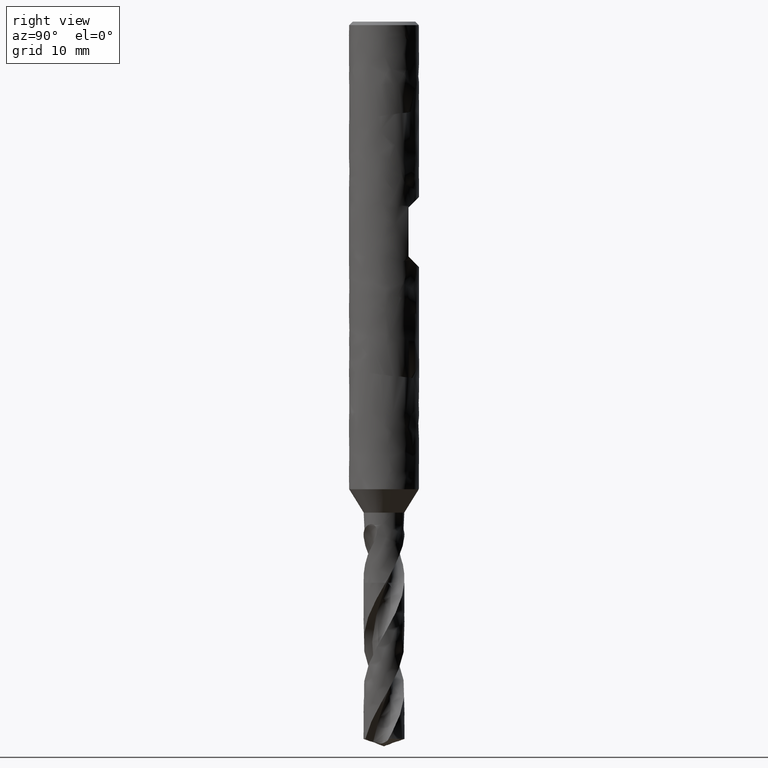
[diagram: clean part render]
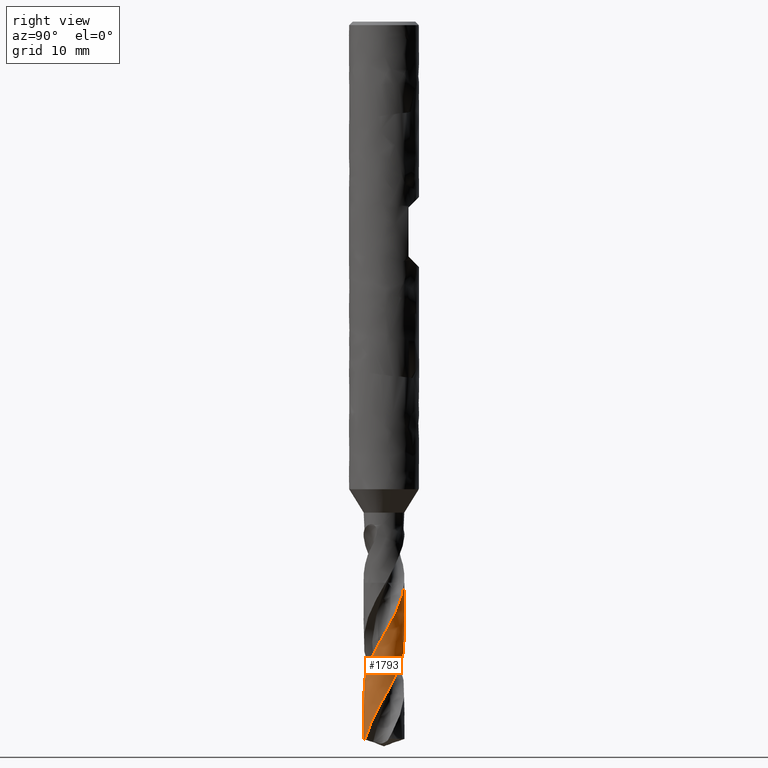
[diagram: same view with one face highlighted and labeled with its STEP entity id]
A machine part, right view. The second image highlights one B-rep face of the part: STEP entity #1793.
In plain terms, the highlighted face is a freeform B-spline surface patch.
Its self-contained STEP definition (entity closure, byte-faithful):
#1635 = VERTEX_POINT('', #1636);
#1636 = CARTESIAN_POINT('', (0.209315928972215, 1.73743685676138, -48.));
#1691 = EDGE_CURVE('', #1692, #1635, #1694, .T.);
#1692 = VERTEX_POINT('', #1693);
#1693 = CARTESIAN_POINT('', (-1.75, 3.04630891287904E-15, -48.));
#1694 = CIRCLE('', #1695, 1.75);
#1695 = AXIS2_PLACEMENT_3D('', #1696, #1697, #1698);
#1696 = CARTESIAN_POINT('', (1.79971173919423E-31, 2.93915231795365E-15, -48.));
#1697 = DIRECTION('', (3.74939945665464E-33, 6.12323399573677E-17, -1.));
#1698 = DIRECTION('', (-1., 6.12323399573677E-17, 0.));
#1793 = ADVANCED_FACE('', (#1794), #2067, .T.);
#1794 = FACE_OUTER_BOUND('', #1795, .T.);
#1795 = EDGE_LOOP('', (#1796, #1797, #1815, #1923, #1935, #1944, #2061));
#1796 = ORIENTED_EDGE('', *, *, #1691, .T.);
#1797 = ORIENTED_EDGE('', *, *, #1798, .T.);
#1798 = EDGE_CURVE('', #1635, #1799, #1801, .T.);
#1799 = VERTEX_POINT('', #1800);
#1800 = CARTESIAN_POINT('', (0.812285113587228, 1.55006222270094, -49.1011981970313));
#1801 = B_SPLINE_CURVE_WITH_KNOTS('', 3, (#1802, #1803, #1804, #1805, #1806, #1807, #1808, #1809, #1810, #1811, #1812, #1813, #1814), .UNSPECIFIED., .F., .U., (4, 3, 3, 3, 4), (1.81740518934497, 2.1073433450919, 2.40334929903332, 2.84747218702439, 3.08838515466523), .UNSPECIFIED.);
#1802 = CARTESIAN_POINT('', (0.209315928972215, 1.73743685676138, -48.));
#1803 = CARTESIAN_POINT('', (0.257262484071789, 1.73166045023539, -48.083716123998));
#1804 = CARTESIAN_POINT('', (0.304984864555673, 1.72389545232376, -48.1674467474083));
#1805 = CARTESIAN_POINT('', (0.352279973630265, 1.71417584284074, -48.2511674808021));
#1806 = CARTESIAN_POINT('', (0.400564870257006, 1.70425282229332, -48.3366403137553));
#1807 = CARTESIAN_POINT('', (0.448430600627391, 1.69228800745389, -48.4221382165554));
#1808 = CARTESIAN_POINT('', (0.495694141142558, 1.67832872776365, -48.50761803289));
#1809 = CARTESIAN_POINT('', (0.566607647545987, 1.65738443415147, -48.6358706656156));
#1810 = CARTESIAN_POINT('', (0.636220878240859, 1.63192758756203, -48.7641906230167));
#1811 = CARTESIAN_POINT('', (0.703900569210542, 1.60219349289188, -48.8924539056458));
#1812 = CARTESIAN_POINT('', (0.740613190067069, 1.58606433319128, -48.962029892142));
#1813 = CARTESIAN_POINT('', (0.776773159889844, 1.56867168941804, -49.0316182206529));
#1814 = CARTESIAN_POINT('', (0.812285113587227, 1.55006222270095, -49.1011981970313));
#1815 = ORIENTED_EDGE('', *, *, #1816, .T.);
#1816 = EDGE_CURVE('', #1799, #1817, #1819, .T.);
#1817 = VERTEX_POINT('', #1818);
#1818 = CARTESIAN_POINT('', (-1.60472008718738, -0.69812136607993, -60.793767295068));
#1819 = B_SPLINE_CURVE_WITH_KNOTS('', 3, (#1820, #1821, #1822, #1823, #1824, #1825, #1826, #1827, #1828, #1829, #1830, #1831, #1832, #1833, #1834, #1835, #1836, #1837, #1838, #1839, #1840, #1841, #1842, #1843, #1844, #1845, #1846, #1847, #1848, #1849, #1850, #1851, #1852, #1853, #1854, #1855, #1856, #1857, #1858, #1859, #1860, #1861, #1862, #1863, #1864, #1865, #1866, #1867, #1868, #1869, #1870, #1871, #1872, #1873, #1874, #1875, #1876, #1877, #1878, #1879, #1880, #1881, #1882, #1883, #1884, #1885, #1886, #1887, #1888, #1889, #1890, #1891, #1892, #1893, #1894, #1895, #1896, #1897, #1898, #1899, #1900, #1901, #1902, #1903, #1904, #1905, #1906, #1907, #1908, #1909, #1910, #1911, #1912, #1913, #1914, #1915, #1916, #1917, #1918, #1919, #1920, #1921, #1922), .UNSPECIFIED., .F., .U., (4, 3, 3, 3, 3, 3, 3, 3, 3, 3, 3, 3, 3, 3, 3, 3, 3, 3, 3, 3, 3, 3, 3, 3, 3, 3, 3, 3, 3, 3, 3, 3, 3, 3, 4), (0., 0.443756836121889, 0.887288175163958, 1.33059910584043, 1.77369262418711, 2.21657009921409, 2.65923121537405, 3.10167392732667, 3.543894182508, 3.74068485896418, 3.79904640233855, 3.8379640019103, 4.28263628757206, 4.72704857300922, 5.17121475194267, 5.61514590872184, 6.05885069698076, 6.5023355147262, 6.94560473054642, 7.3886610129563, 7.83150537335812, 8.27413715198603, 8.71655392235076, 9.15875137936139, 9.35553764459343, 9.44316614862321, 9.88778008784208, 10.3321412014873, 10.7762626352953, 11.2201548358834, 11.6638258872412, 12.1072817140556, 12.5505264320699, 12.993562480295, 13.4660478655872), .UNSPECIFIED.);
#1820 = CARTESIAN_POINT('', (0.812285113587228, 1.55006222270094, -49.1011981970313));
#1821 = CARTESIAN_POINT('', (0.877697417339803, 1.51578395967026, -49.2293631126749));
#1822 = CARTESIAN_POINT('', (0.940955417293331, 1.47734642144535, -49.357600003051));
#1823 = CARTESIAN_POINT('', (1.00149289007346, 1.43509999342637, -49.4857813905828));
#1824 = CARTESIAN_POINT('', (1.06199960045802, 1.39287503312434, -49.6138976421523));
#1825 = CARTESIAN_POINT('', (1.11984806067807, 1.34680363885281, -49.7420862240522));
#1826 = CARTESIAN_POINT('', (1.17452341785513, 1.2973028716957, -49.8702192118372));
#1827 = CARTESIAN_POINT('', (1.22917160467229, 1.24782670343888, -49.9982885252435));
#1828 = CARTESIAN_POINT('', (1.28070313459823, 1.19487635516369, -50.1264299262811));
#1829 = CARTESIAN_POINT('', (1.32866096953211, 1.13892933408619, -50.2545159968944));
#1830 = CARTESIAN_POINT('', (1.37659528457531, 1.08300975102421, -50.3825392504438));
#1831 = CARTESIAN_POINT('', (1.42100627728877, 1.02404177960803, -50.5106342640033));
#1832 = CARTESIAN_POINT('', (1.46150149400688, 0.962555651905725, -50.6386742784558));
#1833 = CARTESIAN_POINT('', (1.50197696608715, 0.901099503579314, -50.766651863221));
#1834 = CARTESIAN_POINT('', (1.53858026815491, 0.837067266219665, -50.8947008436816));
#1835 = CARTESIAN_POINT('', (1.57098942811824, 0.771033213772747, -51.0226951188563));
#1836 = CARTESIAN_POINT('', (1.60338275523948, 0.705031420931652, -51.1506268650068));
#1837 = CARTESIAN_POINT('', (1.63161792041879, 0.636964910030149, -51.2786298179934));
#1838 = CARTESIAN_POINT('', (1.65544846416424, 0.567441963989565, -51.4065780932142));
#1839 = CARTESIAN_POINT('', (1.67926725017713, 0.497953319818667, -51.5344632401397));
#1840 = CARTESIAN_POINT('', (1.69870897521589, 0.426942147646187, -51.662419608365));
#1841 = CARTESIAN_POINT('', (1.71360621754278, 0.355040464171313, -51.7903212781138));
#1842 = CARTESIAN_POINT('', (1.72849596965152, 0.283174932306409, -51.918158639893));
#1843 = CARTESIAN_POINT('', (1.73886018150788, 0.210350621848942, -52.0460671328167));
#1844 = CARTESIAN_POINT('', (1.74461240207954, 0.137213579904692, -52.1739210944639));
#1845 = CARTESIAN_POINT('', (1.74717217487185, 0.104667155833024, -52.2308168772901));
#1846 = CARTESIAN_POINT('', (1.74882085912872, 0.072048912493357, -52.2877198926547));
#1847 = CARTESIAN_POINT('', (1.74955605045022, 0.0394160669401706, -52.3446190063985));
#1848 = CARTESIAN_POINT('', (1.74977408364656, 0.0297382546297603, -52.3614933835515));
#1849 = CARTESIAN_POINT('', (1.74991181016944, 0.0200587881182071, -52.3783680407408));
#1850 = CARTESIAN_POINT('', (1.74996922055275, 0.0103791674995832, -52.3952426916296));
#1851 = CARTESIAN_POINT('', (1.7500075038842, 0.00392444444975615, -52.4064953225272));
#1852 = CARTESIAN_POINT('', (1.75001007400971, -0.00253040713270149, -52.4177480578615));
#1853 = CARTESIAN_POINT('', (1.74997693437631, -0.00898494022834554, -52.4290008140422));
#1854 = CARTESIAN_POINT('', (1.74959828110137, -0.0827344010404915, -52.5575747462975));
#1855 = CARTESIAN_POINT('', (1.74454823691782, -0.156480874963717, -52.6862207940687));
#1856 = CARTESIAN_POINT('', (1.73487748933809, -0.229565016908016, -52.8148114906275));
#1857 = CARTESIAN_POINT('', (1.72521239625184, -0.302606426498776, -52.9433270001079));
#1858 = CARTESIAN_POINT('', (1.7109226436865, -0.375057129044313, -53.0719143036549));
#1859 = CARTESIAN_POINT('', (1.6921413242679, -0.446270925229143, -53.2004466147297));
#1860 = CARTESIAN_POINT('', (1.6733704055628, -0.517445284659028, -53.3289077472193));
#1861 = CARTESIAN_POINT('', (1.65009457991541, -0.587453579554517, -53.4574402640611));
#1862 = CARTESIAN_POINT('', (1.62252682505874, -0.655672709486855, -53.5859181555182));
#1863 = CARTESIAN_POINT('', (1.59497365715948, -0.72385574255356, -53.7143280653228));
#1864 = CARTESIAN_POINT('', (1.56310614454516, -0.790318301342313, -53.8428090848802));
#1865 = CARTESIAN_POINT('', (1.52721310697086, -0.854470670003755, -53.9712356064569));
#1866 = CARTESIAN_POINT('', (1.49133837190512, -0.918590326212956, -54.0995966410291));
#1867 = CARTESIAN_POINT('', (1.4514074248134, -0.980464467276024, -54.2280287680651));
#1868 = CARTESIAN_POINT('', (1.40777948135528, -1.03954650298824, -54.3564063273603));
#1869 = CARTESIAN_POINT('', (1.36417316683014, -1.09859924826665, -54.4847202423623));
#1870 = CARTESIAN_POINT('', (1.31683178934514, -1.15491926358207, -54.6131052667514));
#1871 = CARTESIAN_POINT('', (1.26617889615387, -1.20801117665962, -54.741435821771));
#1872 = CARTESIAN_POINT('', (1.21555062807004, -1.26107727889042, -54.8697039883759));
#1873 = CARTESIAN_POINT('', (1.16156569076529, -1.31096914302434, -54.998042991559));
#1874 = CARTESIAN_POINT('', (1.10470544482768, -1.35724938024229, -55.1263278596233));
#1875 = CARTESIAN_POINT('', (1.04787251286913, -1.40350738580419, -55.2545511034343));
#1876 = CARTESIAN_POINT('', (0.988112352670776, -1.44620174438553, -55.3828447801255));
#1877 = CARTESIAN_POINT('', (0.925956515011156, -1.48495943793371, -55.511084705744));
#1878 = CARTESIAN_POINT('', (0.863830407637399, -1.52369859296077, -55.6392632918361));
#1879 = CARTESIAN_POINT('', (0.799250806556332, -1.55854235704974, -55.7675120008367));
#1880 = CARTESIAN_POINT('', (0.73279043332848, -1.58918789978475, -55.8957071442044));
#1881 = CARTESIAN_POINT('', (0.666361963553171, -1.61981873151874, -56.0238407491324));
#1882 = CARTESIAN_POINT('', (0.597990649277099, -1.64628489774603, -56.1520444408961));
#1883 = CARTESIAN_POINT('', (0.528280257157039, -1.66835846564764, -56.280194466225));
#1884 = CARTESIAN_POINT('', (0.458603726840535, -1.69042131131979, -56.4082822427149));
#1885 = CARTESIAN_POINT('', (0.387523489832298, -1.70811676848304, -56.5364401916673));
#1886 = CARTESIAN_POINT('', (0.315664675178338, -1.72129480706961, -56.6645445107895));
#1887 = CARTESIAN_POINT('', (0.243841482134405, -1.7344663130832, -56.7925853264692));
#1888 = CARTESIAN_POINT('', (0.171172859606744, -1.74313730176231, -56.9206960926383));
#1889 = CARTESIAN_POINT('', (0.098296309949071, -1.74723720068295, -57.0487535385306));
#1890 = CARTESIAN_POINT('', (0.065864861502757, -1.74906173355538, -57.1057415336283));
#1891 = CARTESIAN_POINT('', (0.0333825842058232, -1.74998295930277, -57.1627366902966));
#1892 = CARTESIAN_POINT('', (0.000905600111110615, -1.74999976568239, -57.2197279578332));
#1893 = CARTESIAN_POINT('', (-0.0135563316109155, -1.75000724952738, -57.2451060476664));
#1894 = CARTESIAN_POINT('', (-0.0280180936599366, -1.74983544992234, -57.2704849199799));
#1895 = CARTESIAN_POINT('', (-0.0424746558004191, -1.74948446795467, -57.2958636431838));
#1896 = CARTESIAN_POINT('', (-0.115825092533408, -1.74770363788152, -57.4246314935648));
#1897 = CARTESIAN_POINT('', (-0.18908327490552, -1.74130027363398, -57.5534702885384));
#1898 = CARTESIAN_POINT('', (-0.261601716378443, -1.73033654009497, -57.6822549514826));
#1899 = CARTESIAN_POINT('', (-0.33407892091535, -1.71937904098088, -57.8109663822281));
#1900 = CARTESIAN_POINT('', (-0.405886304814028, -1.70385591652934, -57.9397483446961));
#1901 = CARTESIAN_POINT('', (-0.476390409168781, -1.68390978916686, -58.0684766152557));
#1902 = CARTESIAN_POINT('', (-0.546856484965815, -1.66397442036182, -58.1971354522623));
#1903 = CARTESIAN_POINT('', (-0.616088451477309, -1.6396016575196, -58.3258644085136));
#1904 = CARTESIAN_POINT('', (-0.683476886747197, -1.6110119010371, -58.454539999531));
#1905 = CARTESIAN_POINT('', (-0.750830539485053, -1.58243690115367, -58.5831491746589));
#1906 = CARTESIAN_POINT('', (-0.816407314854783, -1.54962185144022, -58.7118283378846));
#1907 = CARTESIAN_POINT('', (-0.879632261726478, -1.51286056334685, -58.8404540696545));
#1908 = CARTESIAN_POINT('', (-0.942825709625401, -1.4761175899041, -58.9690157194659));
#1909 = CARTESIAN_POINT('', (-1.00372942422815, -1.4353976534301, -59.0976474872346));
#1910 = CARTESIAN_POINT('', (-1.06181200964312, -1.39106263560548, -59.2262257716491));
#1911 = CARTESIAN_POINT('', (-1.11986641923304, -1.34674912466965, -59.3547416828201));
#1912 = CARTESIAN_POINT('', (-1.17515673769332, -1.29878263449679, -59.483327609336));
#1913 = CARTESIAN_POINT('', (-1.22720232536989, -1.24758745288926, -59.6118602951866));
#1914 = CARTESIAN_POINT('', (-1.27922313655037, -1.19641664293886, -59.7403317925728));
#1915 = CARTESIAN_POINT('', (-1.32805115907387, -1.14197215915197, -59.8688729167138));
#1916 = CARTESIAN_POINT('', (-1.37326309567462, -1.08473428546264, -59.997361238486));
#1917 = CARTESIAN_POINT('', (-1.4184537474977, -1.02752335809562, -60.1257890708041));
#1918 = CARTESIAN_POINT('', (-1.46007460247687, -0.96746738219097, -60.2542861054354));
#1919 = CARTESIAN_POINT('', (-1.49776610061547, -0.905094861242249, -60.3827306963487));
#1920 = CARTESIAN_POINT('', (-1.53796301482054, -0.838576335920971, -60.5197132111339));
#1921 = CARTESIAN_POINT('', (-1.5737284529556, -0.769359549586279, -60.6567659983669));
#1922 = CARTESIAN_POINT('', (-1.60472008718738, -0.69812136607993, -60.793767295068));
#1923 = ORIENTED_EDGE('', *, *, #1924, .T.);
#1924 = EDGE_CURVE('', #1817, #1925, #1927, .T.);
#1925 = VERTEX_POINT('', #1926);
#1926 = CARTESIAN_POINT('', (-1.70552427638684, -0.392029262498553, -61.3630520900341));
#1927 = B_SPLINE_CURVE_WITH_KNOTS('', 3, (#1928, #1929, #1930, #1931, #1932, #1933, #1934), .UNSPECIFIED., .F., .U., (4, 3, 4), (0., 0.442607897854983, 0.654318366333945), .UNSPECIFIED.);
#1928 = CARTESIAN_POINT('', (-1.60472008718739, -0.698121366079911, -60.793767295068));
#1929 = CARTESIAN_POINT('', (-1.63375197368678, -0.63138791012496, -60.9221053512785));
#1930 = CARTESIAN_POINT('', (-1.65862203584003, -0.562819633574495, -61.0505107746947));
#1931 = CARTESIAN_POINT('', (-1.67911815080752, -0.49301342337579, -61.1788613241218));
#1932 = CARTESIAN_POINT('', (-1.68892195711734, -0.459623360668976, -61.2402546139397));
#1933 = CARTESIAN_POINT('', (-1.69772968556684, -0.425939649144893, -61.3016560236142));
#1934 = CARTESIAN_POINT('', (-1.70552427638684, -0.392029262498552, -61.3630520900341));
#1935 = ORIENTED_EDGE('', *, *, #1936, .F.);
#1936 = EDGE_CURVE('', #1937, #1925, #1939, .T.);
#1937 = VERTEX_POINT('', #1938);
#1938 = CARTESIAN_POINT('', (0.72414974026911, -1.59314379566572, -61.3630520900341));
#1939 = CIRCLE('', #1940, 1.75);
#1940 = AXIS2_PLACEMENT_3D('', #1941, #1942, #1943);
#1941 = CARTESIAN_POINT('', (2.30074594165045E-31, 3.75740326639863E-15, -61.3630520900341));
#1942 = DIRECTION('', (3.74939945665464E-33, 6.12323399573677E-17, -1.));
#1943 = DIRECTION('', (-1., 6.12323399573677E-17, 0.));
#1944 = ORIENTED_EDGE('', *, *, #1945, .T.);
#1945 = EDGE_CURVE('', #1937, #1946, #1948, .T.);
#1946 = VERTEX_POINT('', #1947);
#1947 = CARTESIAN_POINT('', (-1.75, 3.06125307126137E-15, -48.2440566274739));
#1948 = B_SPLINE_CURVE_WITH_KNOTS('', 3, (#1949, #1950, #1951, #1952, #1953, #1954, #1955, #1956, #1957, #1958, #1959, #1960, #1961, #1962, #1963, #1964, #1965, #1966, #1967, #1968, #1969, #1970, #1971, #1972, #1973, #1974, #1975, #1976, #1977, #1978, #1979, #1980, #1981, #1982, #1983, #1984, #1985, #1986, #1987, #1988, #1989, #1990, #1991, #1992, #1993, #1994, #1995, #1996, #1997, #1998, #1999, #2000, #2001, #2002, #2003, #2004, #2005, #2006, #2007, #2008, #2009, #2010, #2011, #2012, #2013, #2014, #2015, #2016, #2017, #2018, #2019, #2020, #2021, #2022, #2023, #2024, #2025, #2026, #2027, #2028, #2029, #2030, #2031, #2032, #2033, #2034, #2035, #2036, #2037, #2038, #2039, #2040, #2041, #2042, #2043, #2044, #2045, #2046, #2047, #2048, #2049, #2050, #2051, #2052, #2053, #2054, #2055, #2056, #2057, #2058, #2059, #2060), .UNSPECIFIED., .F., .U., (4, 3, 3, 3, 3, 3, 3, 3, 3, 3, 3, 3, 3, 3, 3, 3, 3, 3, 3, 3, 3, 3, 3, 3, 3, 3, 3, 3, 3, 3, 3, 3, 3, 3, 3, 3, 3, 4), (0., 0.443847937543507, 0.887476527148981, 1.33089034795524, 1.7740923103122, 2.21708369235605, 2.65986412008263, 3.10243130269562, 3.54478128747733, 3.98690836684805, 4.04527002763505, 4.48993729528797, 4.93435015305495, 5.37852120259041, 5.82246039386002, 6.26617537552147, 6.70967174357726, 7.15295309651346, 7.59602119115275, 8.03887617609122, 8.48151656918666, 8.92393918177072, 9.36613893938186, 9.56292493800914, 9.6018420799754, 10.0465098315167, 10.4909208636234, 10.9350878719673, 11.3790208477854, 11.8227274351835, 12.2662131761833, 12.7094816516234, 13.1525345977588, 13.5953720588433, 14.0379924681165, 14.4803925667114, 14.922565430105, 15.1091912865794), .UNSPECIFIED.);
#1949 = CARTESIAN_POINT('', (0.724149740269113, -1.59314379566572, -61.3630520900341));
#1950 = CARTESIAN_POINT('', (0.790743061781333, -1.56287437704329, -61.2344515810937));
#1951 = CARTESIAN_POINT('', (0.855474128523638, -1.52840352414266, -61.1057940132495));
#1952 = CARTESIAN_POINT('', (0.91777140533787, -1.49003209614563, -60.9772028709087));
#1953 = CARTESIAN_POINT('', (0.98003789507829, -1.45167963116025, -60.8486752778143));
#1954 = CARTESIAN_POINT('', (1.03993244428945, -1.40939383034325, -60.7200906764512));
#1955 = CARTESIAN_POINT('', (1.0969261209246, -1.3635443099633, -60.5915725384074));
#1956 = CARTESIAN_POINT('', (1.15389220586755, -1.31771698618354, -60.4631166183695));
#1957 = CARTESIAN_POINT('', (1.20801425536613, -1.26828595191665, -60.3346035409496));
#1958 = CARTESIAN_POINT('', (1.25881450214995, -1.21568336715486, -60.2061570352189));
#1959 = CARTESIAN_POINT('', (1.30959047711137, -1.16310591535355, -60.0777718998747));
#1960 = CARTESIAN_POINT('', (1.35709569735492, -1.10731036666353, -59.9493295706673));
#1961 = CARTESIAN_POINT('', (1.40091055317268, -1.04878483113048, -59.8209537507135));
#1962 = CARTESIAN_POINT('', (1.44470459106354, -0.990287103068172, -59.6926389264743));
#1963 = CARTESIAN_POINT('', (1.48485320244623, -0.92900658578636, -59.5642670791108));
#1964 = CARTESIAN_POINT('', (1.52100100989738, -0.865480171864811, -59.4359614798038));
#1965 = CARTESIAN_POINT('', (1.55713160361402, -0.801984009482729, -59.3077169801506));
#1966 = CARTESIAN_POINT('', (1.58929973726684, -0.736183347878188, -59.1794156791108));
#1967 = CARTESIAN_POINT('', (1.61721987960906, -0.668655263194214, -59.0511805140376));
#1968 = CARTESIAN_POINT('', (1.64512657548087, -0.601159700349931, -58.9230071076163));
#1969 = CARTESIAN_POINT('', (1.66881607073277, -0.531873822266265, -58.7947768687851));
#1970 = CARTESIAN_POINT('', (1.68807740900337, -0.461405094480876, -58.666612848701));
#1971 = CARTESIAN_POINT('', (1.70732929442463, -0.390970950495302, -58.5385117274226));
#1972 = CARTESIAN_POINT('', (1.72217566345093, -0.31928824885508, -58.4103536438892));
#1973 = CARTESIAN_POINT('', (1.73248330172929, -0.246985038475483, -58.2822618823821));
#1974 = CARTESIAN_POINT('', (1.7427857458663, -0.174718262542322, -58.1542346678351));
#1975 = CARTESIAN_POINT('', (1.74856375714481, -0.101763405682286, -58.0261504408048));
#1976 = CARTESIAN_POINT('', (1.74976366649976, -0.0287595444558509, -57.8981325069548));
#1977 = CARTESIAN_POINT('', (1.74992205694001, -0.0191228884267688, -57.8812338830555));
#1978 = CARTESIAN_POINT('', (1.75000083876352, -0.00948470676638018, -57.8643351954138));
#1979 = CARTESIAN_POINT('', (1.74999999326654, 0.000153515826625066, -57.8474367226668));
#1980 = CARTESIAN_POINT('', (1.74999355128345, 0.0735887479236704, -57.7186844287368));
#1981 = CARTESIAN_POINT('', (1.74535564538825, 0.147067379589723, -57.5898742979914));
#1982 = CARTESIAN_POINT('', (1.73612438528262, 0.219936624571218, -57.4611313621869));
#1983 = CARTESIAN_POINT('', (1.7268984067077, 0.292764178477941, -57.3324620847737));
#1984 = CARTESIAN_POINT('', (1.71307539382626, 0.365053551954201, -57.2037350548565));
#1985 = CARTESIAN_POINT('', (1.69477496906397, 0.436162589219156, -57.0750752184214));
#1986 = CARTESIAN_POINT('', (1.67648450169439, 0.507232935545616, -56.9464853867284));
#1987 = CARTESIAN_POINT('', (1.65370389154899, 0.577192689991716, -56.8178377080752));
#1988 = CARTESIAN_POINT('', (1.62663208698398, 0.645420834490316, -56.6892573136356));
#1989 = CARTESIAN_POINT('', (1.59957441396056, 0.713613363747259, -56.560744038445));
#1990 = CARTESIAN_POINT('', (1.56820414391577, 0.780141340635718, -56.4321728414471));
#1991 = CARTESIAN_POINT('', (1.53279623356731, 0.844414416244709, -56.3036689416905));
#1992 = CARTESIAN_POINT('', (1.49740620583398, 0.908655031009105, -56.1752299422843));
#1993 = CARTESIAN_POINT('', (1.45794876887507, 0.97070442595192, -56.0467330937873));
#1994 = CARTESIAN_POINT('', (1.41477065822956, 1.03001164295007, -55.9183033776396));
#1995 = CARTESIAN_POINT('', (1.3716138209754, 1.0892896399194, -55.7899369374336));
#1996 = CARTESIAN_POINT('', (1.32469842321021, 1.1458851893772, -55.6615128377134));
#1997 = CARTESIAN_POINT('', (1.27443756350475, 1.19929516664084, -55.5331556921857));
#1998 = CARTESIAN_POINT('', (1.22420107117981, 1.25267924977439, -55.4048607765409));
#1999 = CARTESIAN_POINT('', (1.17057378368754, 1.30293245736536, -55.2765082964068));
#2000 = CARTESIAN_POINT('', (1.11402829257441, 1.34960770720375, -55.148222758014));
#2001 = CARTESIAN_POINT('', (1.05751000494063, 1.39626050203873, -55.0199989365313));
#2002 = CARTESIAN_POINT('', (0.998021883273574, 1.43938373150413, -54.8917174717212));
#2003 = CARTESIAN_POINT('', (0.936088112774439, 1.47859360377434, -54.7635030322578));
#2004 = CARTESIAN_POINT('', (0.874184131572843, 1.51778461663163, -54.6353502621883));
#2005 = CARTESIAN_POINT('', (0.809777578113443, 1.55310357184836, -54.5071397730341));
#2006 = CARTESIAN_POINT('', (0.743435917514338, 1.58423578944224, -54.3789963379681));
#2007 = CARTESIAN_POINT('', (0.677126403734624, 1.61535292146594, -54.2509149966728));
#2008 = CARTESIAN_POINT('', (0.608820266034737, 1.64231710813248, -54.1227759760148));
#2009 = CARTESIAN_POINT('', (0.539119606179451, 1.6648873986649, -53.9947038966529));
#2010 = CARTESIAN_POINT('', (0.469453239275248, 1.68744658454106, -53.86669482917));
#2011 = CARTESIAN_POINT('', (0.398326808368308, 1.70563783926092, -53.7386282405275));
#2012 = CARTESIAN_POINT('', (0.326367810396504, 1.71929754619089, -53.6106284127138));
#2013 = CARTESIAN_POINT('', (0.254445059262199, 1.73295037251954, -53.4826930603526));
#2014 = CARTESIAN_POINT('', (0.181621127784429, 1.74208938686056, -53.3547003142627));
#2015 = CARTESIAN_POINT('', (0.108538702262512, 1.74663085685304, -53.2267742797295));
#2016 = CARTESIAN_POINT('', (0.0760158484144524, 1.74865188398461, -53.1698451384924));
#2017 = CARTESIAN_POINT('', (0.0434317166925627, 1.74976447533174, -53.1129114801054));
#2018 = CARTESIAN_POINT('', (0.0108434922516973, 1.74996640501348, -53.0559842059103));
#2019 = CARTESIAN_POINT('', (0.00439872196397186, 1.75000633938964, -53.044726053262));
#2020 = CARTESIAN_POINT('', (-0.00204635421084815, 1.75001067158084, -53.0334678931349));
#2021 = CARTESIAN_POINT('', (-0.00849129287669472, 1.74997939929169, -53.0222098094833));
#2022 = CARTESIAN_POINT('', (-0.0821312427951214, 1.74962208172416, -52.8935748046733));
#2023 = CARTESIAN_POINT('', (-0.155792754512127, 1.74460711683543, -52.764881253458));
#2024 = CARTESIAN_POINT('', (-0.228817548584149, 1.73497623311119, -52.6362555954743));
#2025 = CARTESIAN_POINT('', (-0.301800183350065, 1.72535090957209, -52.5077041967686));
#2026 = CARTESIAN_POINT('', (-0.374218137800146, 1.71110558378589, -52.3790943717435));
#2027 = CARTESIAN_POINT('', (-0.445424189990643, 1.69236440844498, -52.250552392538));
#2028 = CARTESIAN_POINT('', (-0.51659114331202, 1.67363352378498, -52.1220809950579));
#2029 = CARTESIAN_POINT('', (-0.586616867801636, 1.65039348436112, -51.9935511311337));
#2030 = CARTESIAN_POINT('', (-0.654875813642114, 1.62284862778591, -51.8650891583764));
#2031 = CARTESIAN_POINT('', (-0.72309879370123, 1.59531828465326, -51.7366948725013));
#2032 = CARTESIAN_POINT('', (-0.78962300834134, 1.56346097150517, -51.6082420735491));
#2033 = CARTESIAN_POINT('', (-0.853854348738752, 1.52755777342133, -51.4798571728612));
#2034 = CARTESIAN_POINT('', (-0.918052933669788, 1.49167288456147, -51.3515377434414));
#2035 = CARTESIAN_POINT('', (-0.980023128467946, 1.45171148817976, -51.2231598430636));
#2036 = CARTESIAN_POINT('', (-1.03921128994994, 1.40802695103489, -51.0948497410564));
#2037 = CARTESIAN_POINT('', (-1.09836999166581, 1.36436415702606, -50.9666035029284));
#2038 = CARTESIAN_POINT('', (-1.15480688613144, 1.3169394953345, -50.8382989274709));
#2039 = CARTESIAN_POINT('', (-1.20801729472503, 1.26617305912155, -50.7100619962269));
#2040 = CARTESIAN_POINT('', (-1.26120163531208, 1.21543149360264, -50.5818878888034));
#2041 = CARTESIAN_POINT('', (-1.31121452945252, 1.16130191600755, -50.4536555527258));
#2042 = CARTESIAN_POINT('', (-1.35760835947157, 1.10426425383281, -50.3254908149912));
#2043 = CARTESIAN_POINT('', (-1.4039796315365, 1.04725432493565, -50.1973883944714));
#2044 = CARTESIAN_POINT('', (-1.44678053212003, 0.987283608246393, -50.0692277217543));
#2045 = CARTESIAN_POINT('', (-1.48562774498575, 0.924883886403347, -49.9411346861306));
#2046 = CARTESIAN_POINT('', (-1.52445606396144, 0.862514513545355, -49.813103950362));
#2047 = CARTESIAN_POINT('', (-1.55937218727179, 0.797658043490375, -49.6850148858285));
#2048 = CARTESIAN_POINT('', (-1.5900630744351, 0.730889471341624, -49.5569935065789));
#2049 = CARTESIAN_POINT('', (-1.62073891880454, 0.664153625059109, -49.4290348755714));
#2050 = CARTESIAN_POINT('', (-1.64722339412685, 0.595442803088548, -49.3010180764356));
#2051 = CARTESIAN_POINT('', (-1.66927816615063, 0.525366923219472, -49.1730686725773));
#2052 = CARTESIAN_POINT('', (-1.69132196059252, 0.455325923044844, -49.0451829544854));
#2053 = CARTESIAN_POINT('', (-1.7089618897573, 0.383853412842849, -48.9172387995105));
#2054 = CARTESIAN_POINT('', (-1.72203855172849, 0.311581813272181, -48.789362905465));
#2055 = CARTESIAN_POINT('', (-1.73510849697895, 0.239347335419008, -48.6615526938292));
#2056 = CARTESIAN_POINT('', (-1.74363202874752, 0.166246305514034, -48.5336840241187));
#2057 = CARTESIAN_POINT('', (-1.74753083540951, 0.0929299698317616, -48.4058810206849));
#2058 = CARTESIAN_POINT('', (-1.74917638671481, 0.0619856829407476, -48.3519397978048));
#2059 = CARTESIAN_POINT('', (-1.75, 0.0309931636774463, -48.2979948890454));
#2060 = CARTESIAN_POINT('', (-1.75, 2.8199096676661E-15, -48.2440566274739));
#2061 = ORIENTED_EDGE('', *, *, #2062, .F.);
#2062 = EDGE_CURVE('', #1692, #1946, #2063, .T.);
#2063 = LINE('', #2064, #2065);
#2064 = CARTESIAN_POINT('', (-1.75, 3.04630891287904E-15, -48.));
#2065 = VECTOR('', #2066, 0.244056627473924);
#2066 = DIRECTION('', (0., 1.49441583823321E-17, -0.244056627473924));
#2067 = (
   BOUNDED_SURFACE ()
   B_SPLINE_SURFACE (2, 1, ((#2068, #2069), (#2070, #2071), (#2072, #2073), (#2074, #2075), (#2076, #2077), (#2078, #2079), (#2080, #2081), (#2082, #2083), (#2084, #2085)), .UNSPECIFIED., .T., .F., .U.)
   B_SPLINE_SURFACE_WITH_KNOTS ((3, 2, 2, 2, 3), (2, 2), (0., 2.74889357189107, 5.49778714378214, 8.24668071567321, 10.9955742875643), (0.309868504825647, 1.), .UNSPECIFIED.)
   GEOMETRIC_REPRESENTATION_ITEM ()
   RATIONAL_B_SPLINE_SURFACE (((1., 1.), (0.707106781186547, 0.707106781186548), (1., 1.), (0.707106781186547, 0.707106781186548), (1., 1.), (0.707106781186547, 0.707106781186548), (1., 1.), (0.707106781186547, 0.707106781186548), (1., 1.)))
   REPRESENTATION_ITEM ('')
   SURFACE ()
);
#2068 = CARTESIAN_POINT('', (-1.75, 3.04630891287904E-15, -48.));
#2069 = CARTESIAN_POINT('', (-1.75, 3.86455986132402E-15, -61.3630520900341));
#2070 = CARTESIAN_POINT('', (-1.75, 1.75, -48.));
#2071 = CARTESIAN_POINT('', (-1.75, 1.75, -61.3630520900341));
#2072 = CARTESIAN_POINT('', (1.97215226305253E-31, 1.75, -48.));
#2073 = CARTESIAN_POINT('', (2.34193081237488E-31, 1.75, -61.3630520900341));
#2074 = CARTESIAN_POINT('', (1.75, 1.75, -48.));
#2075 = CARTESIAN_POINT('', (1.75, 1.75, -61.3630520900341));
#2076 = CARTESIAN_POINT('', (1.75, 3.04630891287904E-15, -48.));
#2077 = CARTESIAN_POINT('', (1.75, 3.86455986132402E-15, -61.3630520900341));
#2078 = CARTESIAN_POINT('', (1.75, -1.75, -48.));
#2079 = CARTESIAN_POINT('', (1.75, -1.75, -61.3630520900341));
#2080 = CARTESIAN_POINT('', (2.14313189850787E-16, -1.75, -48.));
#2081 = CARTESIAN_POINT('', (2.14313189850787E-16, -1.75, -61.3630520900341));
#2082 = CARTESIAN_POINT('', (-1.75, -1.75, -48.));
#2083 = CARTESIAN_POINT('', (-1.75, -1.75, -61.3630520900341));
#2084 = CARTESIAN_POINT('', (-1.75, 3.04630891287904E-15, -48.));
#2085 = CARTESIAN_POINT('', (-1.75, 3.86455986132402E-15, -61.3630520900341));